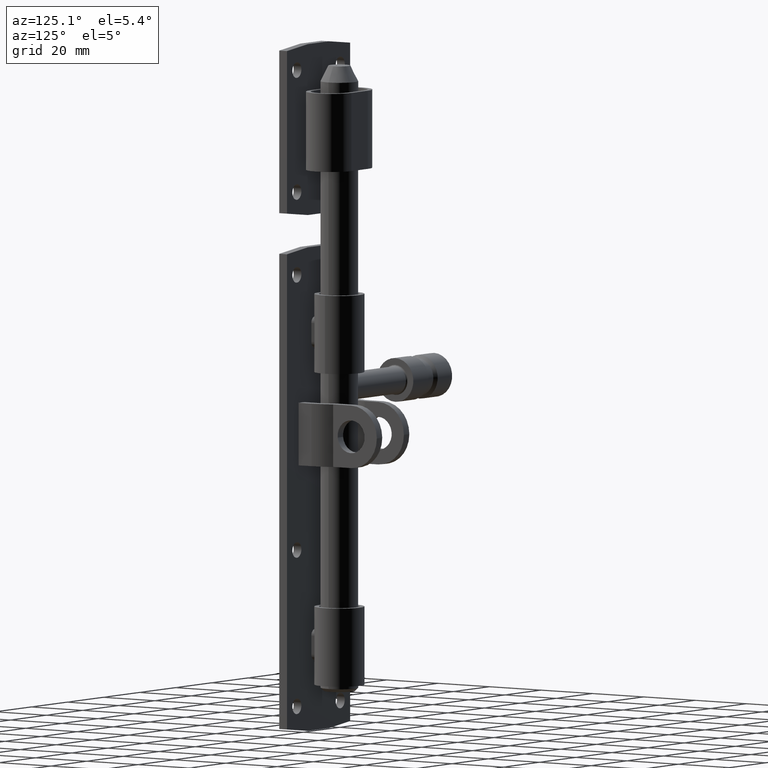
[diagram: clean part render]
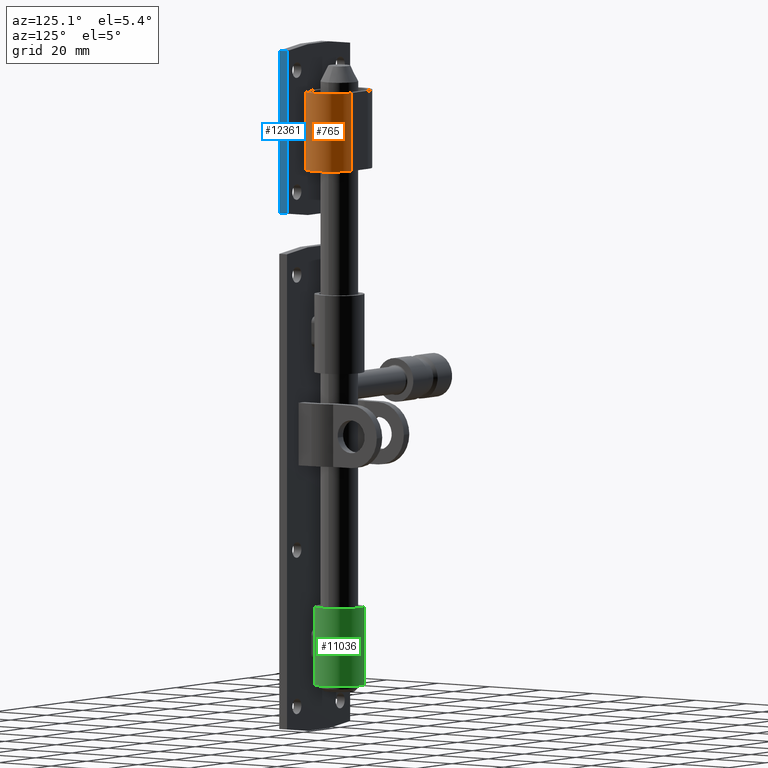
[diagram: same view with three faces highlighted in distinct colors, each labeled with its STEP entity id]
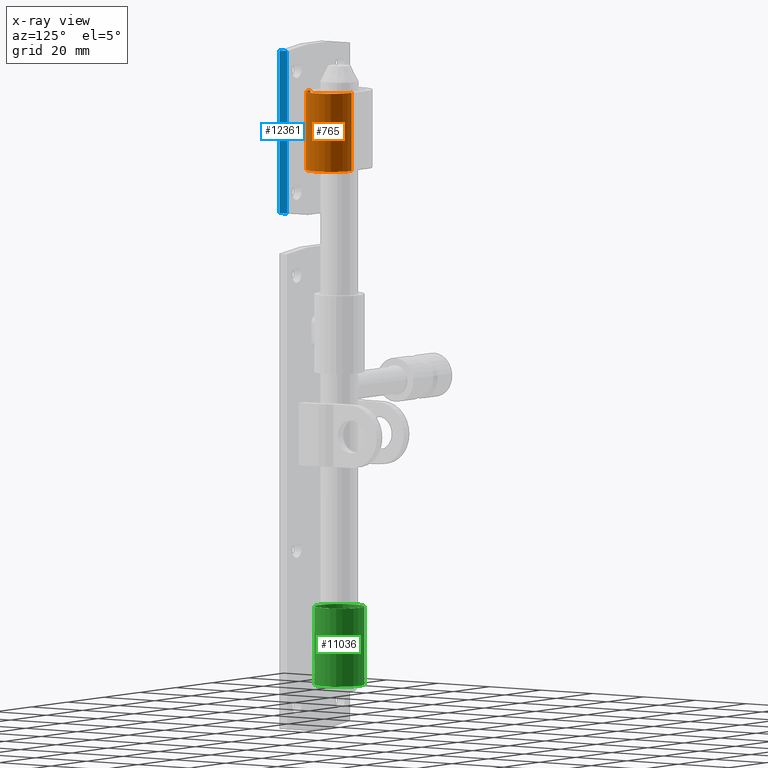
[diagram: x-ray of the same camera — body ghosted, the three highlighted faces saturated]
A machine part, auxiliary view with three faces highlighted in distinct colors.
The next image is the same camera in x-ray (body ghosted, the three faces saturated) — at least one of them is partly hidden behind the body in this view.
Their STEP definitions:

[orange] entity #765 — the highlighted cylindrical surface (edge-blend (fillet) strip) has radius 8 mm, axis along (0, -0, 1).
#541 = VECTOR ( 'NONE', #7025, 1000.000000000000000 ) ;
#765 = ADVANCED_FACE ( 'NONE', ( #9969 ), #11627, .T. ) ;
#1566 = ORIENTED_EDGE ( 'NONE', *, *, #2670, .T. ) ;
#1837 = DIRECTION ( 'NONE',  ( 1.000000000000000000, 0.000000000000000000, 0.000000000000000000 ) ) ;
#2670 = EDGE_CURVE ( 'NONE', #7708, #11668, #6609, .T. ) ;
#3544 = CARTESIAN_POINT ( 'NONE',  ( -4.500000000000000888, 2.999999999999995559, 12.50000000000000000 ) ) ;
#3594 = CARTESIAN_POINT ( 'NONE',  ( -4.500000000000000888, 19.00000000000000355, 12.50000000000000000 ) ) ;
#3740 = DIRECTION ( 'NONE',  ( -0.000000000000000000, -0.000000000000000000, -1.000000000000000000 ) ) ;
#4181 = VERTEX_POINT ( 'NONE', #10425 ) ;
#4423 = VERTEX_POINT ( 'NONE', #13186 ) ;
#4794 = CARTESIAN_POINT ( 'NONE',  ( -4.500000000000000888, 11.00000000000000000, 12.50000000000000000 ) ) ;
#6025 = EDGE_CURVE ( 'NONE', #4181, #7708, #14286, .T. ) ;
#6270 = ORIENTED_EDGE ( 'NONE', *, *, #7101, .F. ) ;
#6609 = CIRCLE ( 'NONE', #10058, 8.000000000000003553 ) ;
#7025 = DIRECTION ( 'NONE',  ( -0.000000000000000000, -0.000000000000000000, -1.000000000000000000 ) ) ;
#7082 = CARTESIAN_POINT ( 'NONE',  ( -4.500000000000000888, 2.999999999999995559, -12.50000000000000000 ) ) ;
#7101 = EDGE_CURVE ( 'NONE', #4423, #11668, #8235, .T. ) ;
#7708 = VERTEX_POINT ( 'NONE', #14105 ) ;
#7727 = EDGE_CURVE ( 'NONE', #4181, #4423, #13191, .T. ) ;
#8235 = LINE ( 'NONE', #3544, #541 ) ;
#9142 = CARTESIAN_POINT ( 'NONE',  ( -4.500000000000000888, 11.00000000000000000, -12.50000000000000000 ) ) ;
#9885 = EDGE_LOOP ( 'NONE', ( #1566, #6270, #12530, #13422 ) ) ;
#9969 = FACE_OUTER_BOUND ( 'NONE', #9885, .T. ) ;
#10058 = AXIS2_PLACEMENT_3D ( 'NONE', #9142, #10211, #1837 ) ;
#10211 = DIRECTION ( 'NONE',  ( 0.000000000000000000, 0.000000000000000000, 1.000000000000000000 ) ) ;
#10425 = CARTESIAN_POINT ( 'NONE',  ( -4.500000000000000888, 19.00000000000000355, 12.50000000000000000 ) ) ;
#10567 = DIRECTION ( 'NONE',  ( 0.000000000000000000, 0.000000000000000000, 1.000000000000000000 ) ) ;
#10617 = DIRECTION ( 'NONE',  ( 1.000000000000000000, 0.000000000000000000, 0.000000000000000000 ) ) ;
#11627 = CYLINDRICAL_SURFACE ( 'NONE', #13214, 8.000000000000003553 ) ;
#11668 = VERTEX_POINT ( 'NONE', #7082 ) ;
#12530 = ORIENTED_EDGE ( 'NONE', *, *, #7727, .F. ) ;
#12870 = CARTESIAN_POINT ( 'NONE',  ( -4.500000000000000888, 11.00000000000000000, 12.50000000000000000 ) ) ;
#13031 = VECTOR ( 'NONE', #3740, 1000.000000000000000 ) ;
#13186 = CARTESIAN_POINT ( 'NONE',  ( -4.500000000000000888, 2.999999999999995559, 12.50000000000000000 ) ) ;
#13191 = CIRCLE ( 'NONE', #15265, 8.000000000000003553 ) ;
#13214 = AXIS2_PLACEMENT_3D ( 'NONE', #4794, #15308, #15355 ) ;
#13422 = ORIENTED_EDGE ( 'NONE', *, *, #6025, .T. ) ;
#14105 = CARTESIAN_POINT ( 'NONE',  ( -4.500000000000000888, 19.00000000000000355, -12.50000000000000000 ) ) ;
#14286 = LINE ( 'NONE', #3594, #13031 ) ;
#15265 = AXIS2_PLACEMENT_3D ( 'NONE', #12870, #10567, #10617 ) ;
#15308 = DIRECTION ( 'NONE',  ( -0.000000000000000000, -0.000000000000000000, -1.000000000000000000 ) ) ;
#15355 = DIRECTION ( 'NONE',  ( -1.000000000000000000, 0.000000000000000000, 0.000000000000000000 ) ) ;

[blue] entity #12361 — the highlighted planar face has unit normal (-1, 0, 0).
#363 = DIRECTION ( 'NONE',  ( -0.000000000000000000, -1.000000000000000000, -0.000000000000000000 ) ) ;
#620 = DIRECTION ( 'NONE',  ( -0.000000000000000000, -0.000000000000000000, 1.000000000000000000 ) ) ;
#734 = VERTEX_POINT ( 'NONE', #4685 ) ;
#1163 = FACE_OUTER_BOUND ( 'NONE', #13402, .T. ) ;
#1706 = VECTOR ( 'NONE', #620, 1000.000000000000000 ) ;
#2510 = VERTEX_POINT ( 'NONE', #4077 ) ;
#2561 = EDGE_CURVE ( 'NONE', #2510, #10785, #11394, .T. ) ;
#2740 = CARTESIAN_POINT ( 'NONE',  ( -17.50000000000000711, 3.000000000000000000, 25.99999999999999289 ) ) ;
#2804 = ORIENTED_EDGE ( 'NONE', *, *, #6152, .T. ) ;
#4077 = CARTESIAN_POINT ( 'NONE',  ( -17.50000000000000711, 3.000000000000000000, 25.99999999999999289 ) ) ;
#4576 = AXIS2_PLACEMENT_3D ( 'NONE', #11607, #9136, #9194 ) ;
#4685 = CARTESIAN_POINT ( 'NONE',  ( -17.50000000000000711, 3.000000000000000000, -25.99999999999999289 ) ) ;
#5090 = VECTOR ( 'NONE', #6712, 1000.000000000000000 ) ;
#5640 = ORIENTED_EDGE ( 'NONE', *, *, #6721, .T. ) ;
#6152 = EDGE_CURVE ( 'NONE', #15012, #10785, #11521, .T. ) ;
#6537 = CARTESIAN_POINT ( 'NONE',  ( -17.50000000000000711, 0.000000000000000000, -25.99999999999999289 ) ) ;
#6712 = DIRECTION ( 'NONE',  ( -0.000000000000000000, -1.000000000000000000, -0.000000000000000000 ) ) ;
#6721 = EDGE_CURVE ( 'NONE', #734, #15012, #10419, .T. ) ;
#7477 = CARTESIAN_POINT ( 'NONE',  ( -17.50000000000000711, 0.000000000000000000, 25.99999999999999289 ) ) ;
#8455 = LINE ( 'NONE', #2740, #1706 ) ;
#8552 = DIRECTION ( 'NONE',  ( -0.000000000000000000, -0.000000000000000000, 1.000000000000000000 ) ) ;
#9073 = ORIENTED_EDGE ( 'NONE', *, *, #2561, .F. ) ;
#9136 = DIRECTION ( 'NONE',  ( 1.000000000000000000, -0.000000000000000000, 0.000000000000000000 ) ) ;
#9194 = DIRECTION ( 'NONE',  ( 0.000000000000000000, 0.000000000000000000, -1.000000000000000000 ) ) ;
#9702 = VECTOR ( 'NONE', #363, 1000.000000000000000 ) ;
#9812 = CARTESIAN_POINT ( 'NONE',  ( -17.50000000000000711, 3.000000000000000000, -25.99999999999999289 ) ) ;
#10404 = VECTOR ( 'NONE', #8552, 1000.000000000000000 ) ;
#10419 = LINE ( 'NONE', #9812, #9702 ) ;
#10785 = VERTEX_POINT ( 'NONE', #7477 ) ;
#11394 = LINE ( 'NONE', #12647, #5090 ) ;
#11521 = LINE ( 'NONE', #12237, #10404 ) ;
#11607 = CARTESIAN_POINT ( 'NONE',  ( -17.50000000000000711, 3.000000000000000000, 25.99999999999999289 ) ) ;
#12237 = CARTESIAN_POINT ( 'NONE',  ( -17.50000000000000711, 0.000000000000000000, 25.99999999999999289 ) ) ;
#12361 = ADVANCED_FACE ( 'NONE', ( #1163 ), #12644, .F. ) ;
#12644 = PLANE ( 'NONE',  #4576 ) ;
#12646 = EDGE_CURVE ( 'NONE', #734, #2510, #8455, .T. ) ;
#12647 = CARTESIAN_POINT ( 'NONE',  ( -17.50000000000000711, 3.000000000000000000, 25.99999999999999289 ) ) ;
#13402 = EDGE_LOOP ( 'NONE', ( #2804, #9073, #14582, #5640 ) ) ;
#14582 = ORIENTED_EDGE ( 'NONE', *, *, #12646, .F. ) ;
#15012 = VERTEX_POINT ( 'NONE', #6537 ) ;

[green] entity #11036 — the highlighted cylindrical surface (bore or boss wall) has radius 8 mm, axis along (-0, -0, -1).
#150 = CARTESIAN_POINT ( 'NONE',  ( 4.000000000000001776, 1.171796769724490206, -53.13721544361901294 ) ) ;
#358 = DIRECTION ( 'NONE',  ( -0.000000000000000000, -0.000000000000000000, -1.000000000000000000 ) ) ;
#391 = EDGE_LOOP ( 'NONE', ( #1995 ) ) ;
#489 = VERTEX_POINT ( 'NONE', #2945 ) ;
#776 = B_SPLINE_CURVE_WITH_KNOTS ( 'NONE', 3,
 ( #8720, #14792, #2706, #5165, #11033, #5121, #2750, #12212, #9909, #3968, #12256, #13464, #6390, #14633, #13666, #3166, #6599, #7934 ),
 .UNSPECIFIED., .F., .F.,
 ( 4, 2, 2, 2, 2, 2, 2, 2, 4 ),
 ( 1.341084023004561850E-18, 0.0004053024212613541588, 0.0008106048425227069081, 0.001215907263784059712, 0.001621209685045412515, 0.002026512106306765319, 0.002431814527568118122, 0.002837116948829470492, 0.003242419370090822862 ),
 .UNSPECIFIED. ) ;
#872 = DIRECTION ( 'NONE',  ( 0.000000000000000000, 0.000000000000000000, -1.000000000000000000 ) ) ;
#945 = CARTESIAN_POINT ( 'NONE',  ( -3.734440012357256755, 1.024119369373791777, -45.96947199844134957 ) ) ;
#1089 = CARTESIAN_POINT ( 'NONE',  ( 3.491063849130732422, 0.9011966928350726436, -45.66087570012603436 ) ) ;
#1196 = AXIS2_PLACEMENT_3D ( 'NONE', #13965, #872, #7925 ) ;
#1230 = CARTESIAN_POINT ( 'NONE',  ( 0.000000000000000000, 8.099999999999999645, -45.00000000000001421 ) ) ;
#1301 = CARTESIAN_POINT ( 'NONE',  ( 2.879476943906894348, 0.6351088891971973238, -54.80082919717088430 ) ) ;
#1375 = CARTESIAN_POINT ( 'NONE',  ( -3.999999999999999112, 1.171796769724489984, -47.00000000000001421 ) ) ;
#1448 = CARTESIAN_POINT ( 'NONE',  ( 2.262433013322839859, 0.4254224623635851077, -54.98693901985913612 ) ) ;
#1835 = VERTEX_POINT ( 'NONE', #12165 ) ;
#1995 = ORIENTED_EDGE ( 'NONE', *, *, #4463, .T. ) ;
#2133 = CARTESIAN_POINT ( 'NONE',  ( 2.640705588109908408, 0.5473288363636569231, -45.10101504854397803 ) ) ;
#2152 = CARTESIAN_POINT ( 'NONE',  ( -3.582720688234869666, 0.9442184203694494737, -45.75061688542967886 ) ) ;
#2416 = CIRCLE ( 'NONE', #12544, 8.000000000000000000 ) ;
#2457 = CARTESIAN_POINT ( 'NONE',  ( -3.206192544386316179, 0.7696657760983882657, -45.39953031026224295 ) ) ;
#2508 = CARTESIAN_POINT ( 'NONE',  ( 3.582720688234870554, 0.9442184203694502509, -54.24938311457033535 ) ) ;
#2549 = AXIS2_PLACEMENT_3D ( 'NONE', #6621, #15021, #10366 ) ;
#2692 = B_SPLINE_CURVE_WITH_KNOTS ( 'NONE', 3,
 ( #8213, #15219, #9245, #9404, #5718, #945, #2152, #10456, #2457, #11370, #10500, #15260, #11205, #13729, #6881, #7288 ),
 .UNSPECIFIED., .F., .F.,
 ( 4, 2, 2, 2, 2, 2, 2, 4 ),
 ( 7.023086426956682172E-18, 0.0004052552676201020047, 0.0008105105352401969620, 0.001621021070480368770, 0.002026276338100454349, 0.002431531605720539928, 0.002836786873340625507, 0.003242042140960711086 ),
 .UNSPECIFIED. ) ;
#2706 = CARTESIAN_POINT ( 'NONE',  ( -2.262405595254725288, 0.4254218699077957910, -54.98691503065616359 ) ) ;
#2741 = AXIS2_PLACEMENT_3D ( 'NONE', #10202, #12590, #15003 ) ;
#2750 = CARTESIAN_POINT ( 'NONE',  ( -2.992268978239930100, 0.6797747665175284393, -54.74118875394872674 ) ) ;
#2766 = CARTESIAN_POINT ( 'NONE',  ( -1.999999999999999112, 0.3540333075851658240, -45.00000000000001421 ) ) ;
#2945 = CARTESIAN_POINT ( 'NONE',  ( -3.999999999999999112, 1.171796769724489984, -52.99999999999999289 ) ) ;
#3094 = CARTESIAN_POINT ( 'NONE',  ( 8.000000000000000000, 8.099999999999999645, -62.50000000000000000 ) ) ;
#3166 = CARTESIAN_POINT ( 'NONE',  ( -3.985670443235195926, 1.163470887433002421, -53.27464148206102124 ) ) ;
#3197 = DIRECTION ( 'NONE',  ( 0.000000000000000000, 0.000000000000000000, 1.000000000000000000 ) ) ;
#3266 = CARTESIAN_POINT ( 'NONE',  ( 2.000000000000000000, 0.3540333075851658240, -45.00000000000001421 ) ) ;
#3618 = LINE ( 'NONE', #12117, #5288 ) ;
#3845 = CARTESIAN_POINT ( 'NONE',  ( 3.206192544386312626, 0.7696657760983877106, -54.60046968973777837 ) ) ;
#3968 = CARTESIAN_POINT ( 'NONE',  ( -3.491063849130730201, 0.9011966928350723105, -54.33912429987396564 ) ) ;
#3982 = FACE_BOUND ( 'NONE', #10133, .T. ) ;
#4463 = EDGE_CURVE ( 'NONE', #8967, #8967, #13060, .T. ) ;
#4528 = VERTEX_POINT ( 'NONE', #5699 ) ;
#4529 = CARTESIAN_POINT ( 'NONE',  ( 3.985670443235197702, 1.163470887433003975, -46.72535851793900719 ) ) ;
#4588 = CARTESIAN_POINT ( 'NONE',  ( 2.992268978239930988, 0.6797747665175268850, -45.25881124605128036 ) ) ;
#4689 = CARTESIAN_POINT ( 'NONE',  ( 4.000000000000001776, 1.171796769724490428, -46.86257325789632944 ) ) ;
#4913 = CIRCLE ( 'NONE', #2741, 8.000000000000000000 ) ;
#4962 = CARTESIAN_POINT ( 'NONE',  ( 4.000000000000000000, 1.171796769724489984, -52.99999999999999289 ) ) ;
#5001 = CARTESIAN_POINT ( 'NONE',  ( 2.132649590216821878, 0.3882832845045647852, -54.99999999999999289 ) ) ;
#5093 = VECTOR ( 'NONE', #15152, 1000.000000000000000 ) ;
#5121 = CARTESIAN_POINT ( 'NONE',  ( -2.879395987587925809, 0.6350655424336506538, -54.80091926346131714 ) ) ;
#5165 = CARTESIAN_POINT ( 'NONE',  ( -2.515832791697636850, 0.5047242369649065363, -54.93664776520609649 ) ) ;
#5288 = VECTOR ( 'NONE', #358, 1000.000000000000000 ) ;
#5401 = EDGE_CURVE ( 'NONE', #12171, #10633, #2692, .T. ) ;
#5404 = CARTESIAN_POINT ( 'NONE',  ( -8.000000000000000000, 8.099999999999999645, -37.50000000000000711 ) ) ;
#5471 = CARTESIAN_POINT ( 'NONE',  ( -3.999999999999999112, 1.171796769724489984, 62.50000000000000000 ) ) ;
#5581 = CARTESIAN_POINT ( 'NONE',  ( 2.132787571037483954, 0.3883189109992664090, -45.00000000000000711 ) ) ;
#5699 = CARTESIAN_POINT ( 'NONE',  ( -1.999999999999999112, 0.3540333075851658240, -54.99999999999999289 ) ) ;
#5718 = CARTESIAN_POINT ( 'NONE',  ( -3.890870403152122847, 1.109673846517148954, -46.33503635580667179 ) ) ;
#6062 = DIRECTION ( 'NONE',  ( -1.000000000000000000, 0.000000000000000000, 0.000000000000000000 ) ) ;
#6071 = CIRCLE ( 'NONE', #13218, 8.000000000000000000 ) ;
#6172 = CARTESIAN_POINT ( 'NONE',  ( 2.000000000000000000, 0.3540333075851658240, -54.99999999999999289 ) ) ;
#6273 = CARTESIAN_POINT ( 'NONE',  ( 3.986033116961417821, 1.163681633895160106, -53.27155093990069190 ) ) ;
#6305 = ORIENTED_EDGE ( 'NONE', *, *, #10730, .T. ) ;
#6390 = CARTESIAN_POINT ( 'NONE',  ( -3.786355380819492744, 1.052516321013093670, -53.90904936915845269 ) ) ;
#6407 = EDGE_LOOP ( 'NONE', ( #6305 ) ) ;
#6435 = B_SPLINE_CURVE_WITH_KNOTS ( 'NONE', 3,
 ( #3266, #5581, #11427, #9385, #2133, #15202, #4588, #9275, #12948, #1089, #10496, #9442, #10587, #11638, #7109, #4529, #4689, #8258 ),
 .UNSPECIFIED., .F., .F.,
 ( 4, 2, 2, 2, 2, 2, 2, 2, 4 ),
 ( 1.341084023004561850E-18, 0.0004053024212613543214, 0.0008106048425227072333, 0.001215907263784060145, 0.001621209685045413166, 0.002026512106306766186, 0.002431814527568118989, 0.002837116948829471359, 0.003242419370090823729 ),
 .UNSPECIFIED. ) ;
#6451 = EDGE_CURVE ( 'NONE', #10633, #1835, #2416, .T. ) ;
#6599 = CARTESIAN_POINT ( 'NONE',  ( -4.000000000000000888, 1.171796769724490428, -53.13742674210367767 ) ) ;
#6621 = CARTESIAN_POINT ( 'NONE',  ( 0.000000000000000000, 8.099999999999999645, 62.50000000000000000 ) ) ;
#6881 = CARTESIAN_POINT ( 'NONE',  ( -2.132649590216820101, 0.3882832845045648407, -45.00000000000002132 ) ) ;
#7109 = CARTESIAN_POINT ( 'NONE',  ( 3.930570813800700058, 1.132100884106729932, -46.46035994801403746 ) ) ;
#7187 = FACE_OUTER_BOUND ( 'NONE', #6407, .T. ) ;
#7211 = EDGE_CURVE ( 'NONE', #14315, #14791, #8973, .T. ) ;
#7261 = CARTESIAN_POINT ( 'NONE',  ( 3.890870403152122847, 1.109673846517148732, -53.66496364419334242 ) ) ;
#7288 = CARTESIAN_POINT ( 'NONE',  ( -1.999999999999999112, 0.3540333075851658240, -45.00000000000001421 ) ) ;
#7418 = CARTESIAN_POINT ( 'NONE',  ( 2.992194004628225379, 0.6797408734971706057, -54.74125091215548622 ) ) ;
#7461 = CARTESIAN_POINT ( 'NONE',  ( 2.642134740065424037, 0.5478406543576221921, -54.89845423117019152 ) ) ;
#7469 = VERTEX_POINT ( 'NONE', #3094 ) ;
#7601 = ORIENTED_EDGE ( 'NONE', *, *, #5401, .T. ) ;
#7925 = DIRECTION ( 'NONE',  ( -1.000000000000000000, 0.000000000000000000, 0.000000000000000000 ) ) ;
#7934 = CARTESIAN_POINT ( 'NONE',  ( -3.999999999999999112, 1.171796769724489984, -52.99999999999999289 ) ) ;
#8127 = ORIENTED_EDGE ( 'NONE', *, *, #9982, .T. ) ;
#8213 = CARTESIAN_POINT ( 'NONE',  ( -3.999999999999999112, 1.171796769724489984, -47.00000000000001421 ) ) ;
#8258 = CARTESIAN_POINT ( 'NONE',  ( 4.000000000000000000, 1.171796769724489984, -47.00000000000001421 ) ) ;
#8416 = CARTESIAN_POINT ( 'NONE',  ( 3.307448130364824213, 0.8150112387686041515, -54.51890425056702583 ) ) ;
#8473 = CARTESIAN_POINT ( 'NONE',  ( 3.734440012357259420, 1.024119369373792665, -54.03052800155864333 ) ) ;
#8612 = CARTESIAN_POINT ( 'NONE',  ( 3.931836053470450398, 1.132817087652544297, -53.53486158689903363 ) ) ;
#8685 = ORIENTED_EDGE ( 'NONE', *, *, #10832, .T. ) ;
#8705 = ORIENTED_EDGE ( 'NONE', *, *, #6451, .T. ) ;
#8720 = CARTESIAN_POINT ( 'NONE',  ( -1.999999999999999112, 0.3540333075851658240, -54.99999999999999289 ) ) ;
#8967 = VERTEX_POINT ( 'NONE', #5404 ) ;
#8973 = B_SPLINE_CURVE_WITH_KNOTS ( 'NONE', 3,
 ( #4962, #150, #6273, #8612, #7261, #8473, #2508, #8416, #3845, #7418, #1301, #7461, #10812, #1448, #5001, #6172 ),
 .UNSPECIFIED., .F., .F.,
 ( 4, 2, 2, 2, 2, 2, 2, 4 ),
 ( 7.023086426956682172E-18, 0.0004052552676201016794, 0.0008105105352401963115, 0.001621021070480367469, 0.002026276338100453482, 0.002431531605720539495, 0.002836786873340625507, 0.003242042140960711520 ),
 .UNSPECIFIED. ) ;
#9009 = VERTEX_POINT ( 'NONE', #13780 ) ;
#9209 = DIRECTION ( 'NONE',  ( 1.000000000000000000, 0.000000000000000000, 0.000000000000000000 ) ) ;
#9245 = CARTESIAN_POINT ( 'NONE',  ( -3.986033116961415157, 1.163681633895160106, -46.72844906009930810 ) ) ;
#9275 = CARTESIAN_POINT ( 'NONE',  ( 3.205837372916344297, 0.7695141435127303975, -45.39928383773606413 ) ) ;
#9368 = ORIENTED_EDGE ( 'NONE', *, *, #11789, .T. ) ;
#9385 = CARTESIAN_POINT ( 'NONE',  ( 2.515832791697637294, 0.5047242369649065363, -45.06335223479391061 ) ) ;
#9404 = CARTESIAN_POINT ( 'NONE',  ( -3.931836053470449510, 1.132817087652543853, -46.46513841310097348 ) ) ;
#9442 = CARTESIAN_POINT ( 'NONE',  ( 3.721539310241696707, 1.017837916752532212, -45.97371847613445794 ) ) ;
#9894 = ORIENTED_EDGE ( 'NONE', *, *, #11356, .T. ) ;
#9909 = CARTESIAN_POINT ( 'NONE',  ( -3.307357247797833466, 0.8149685045708062736, -54.51899385098424489 ) ) ;
#9982 = EDGE_CURVE ( 'NONE', #4528, #489, #776, .T. ) ;
#10133 = EDGE_LOOP ( 'NONE', ( #9894, #7601, #8705, #14458, #8685, #12512, #9368, #8127 ) ) ;
#10202 = CARTESIAN_POINT ( 'NONE',  ( 0.000000000000000000, 8.099999999999999645, -54.99999999999999289 ) ) ;
#10366 = DIRECTION ( 'NONE',  ( -1.000000000000000000, 0.000000000000000000, 0.000000000000000000 ) ) ;
#10412 = CARTESIAN_POINT ( 'NONE',  ( 2.000000000000000000, 0.3540333075851658240, -54.99999999999999289 ) ) ;
#10456 = CARTESIAN_POINT ( 'NONE',  ( -3.307448130364824213, 0.8150112387686039295, -45.48109574943300970 ) ) ;
#10496 = CARTESIAN_POINT ( 'NONE',  ( 3.573954347031696788, 0.9422262583680666159, -45.75918612338704605 ) ) ;
#10500 = CARTESIAN_POINT ( 'NONE',  ( -2.879476943906895237, 0.6351088891971979900, -45.19917080282912991 ) ) ;
#10587 = CARTESIAN_POINT ( 'NONE',  ( 3.786355380819494965, 1.052516321013095668, -46.09095063084156152 ) ) ;
#10633 = VERTEX_POINT ( 'NONE', #2766 ) ;
#10730 = EDGE_CURVE ( 'NONE', #7469, #7469, #6071, .T. ) ;
#10812 = CARTESIAN_POINT ( 'NONE',  ( 2.516680697326913130, 0.5049975780998859909, -54.93645005412747651 ) ) ;
#10832 = EDGE_CURVE ( 'NONE', #9009, #14315, #3618, .T. ) ;
#11033 = CARTESIAN_POINT ( 'NONE',  ( -2.640705588109908408, 0.5473288363636569231, -54.89898495145603619 ) ) ;
#11036 = ADVANCED_FACE ( 'NONE', ( #13455, #7187, #3982 ), #13092, .T. ) ;
#11117 = CARTESIAN_POINT ( 'NONE',  ( 4.000000000000000000, 1.171796769724489984, -52.99999999999999289 ) ) ;
#11205 = CARTESIAN_POINT ( 'NONE',  ( -2.516680697326912686, 0.5049975780998858799, -45.06354994587252349 ) ) ;
#11356 = EDGE_CURVE ( 'NONE', #489, #12171, #13806, .T. ) ;
#11370 = CARTESIAN_POINT ( 'NONE',  ( -2.992194004628229376, 0.6797408734971708277, -45.25874908784453510 ) ) ;
#11427 = CARTESIAN_POINT ( 'NONE',  ( 2.262405595254726620, 0.4254218699077957355, -45.01308496934384351 ) ) ;
#11638 = CARTESIAN_POINT ( 'NONE',  ( 3.890365148396876194, 1.109393997113949704, -46.33369983650263890 ) ) ;
#11789 = EDGE_CURVE ( 'NONE', #14791, #4528, #4913, .T. ) ;
#12117 = CARTESIAN_POINT ( 'NONE',  ( 4.000000000000000000, 1.171796769724489984, 62.50000000000000000 ) ) ;
#12165 = CARTESIAN_POINT ( 'NONE',  ( 2.000000000000000000, 0.3540333075851658240, -45.00000000000001421 ) ) ;
#12171 = VERTEX_POINT ( 'NONE', #1375 ) ;
#12212 = CARTESIAN_POINT ( 'NONE',  ( -3.205837372916342076, 0.7695141435127315077, -54.60071616226395008 ) ) ;
#12256 = CARTESIAN_POINT ( 'NONE',  ( -3.573954347031695455, 0.9422262583680667269, -54.24081387661296105 ) ) ;
#12512 = ORIENTED_EDGE ( 'NONE', *, *, #7211, .T. ) ;
#12544 = AXIS2_PLACEMENT_3D ( 'NONE', #1230, #13143, #6062 ) ;
#12590 = DIRECTION ( 'NONE',  ( -0.000000000000000000, -0.000000000000000000, -1.000000000000000000 ) ) ;
#12948 = CARTESIAN_POINT ( 'NONE',  ( 3.307357247797833910, 0.8149685045708062736, -45.48100614901576222 ) ) ;
#13060 = CIRCLE ( 'NONE', #1196, 8.000000000000000000 ) ;
#13092 = CYLINDRICAL_SURFACE ( 'NONE', #2549, 8.000000000000000000 ) ;
#13143 = DIRECTION ( 'NONE',  ( -0.000000000000000000, -0.000000000000000000, 1.000000000000000000 ) ) ;
#13218 = AXIS2_PLACEMENT_3D ( 'NONE', #14804, #3197, #9209 ) ;
#13455 = FACE_OUTER_BOUND ( 'NONE', #391, .T. ) ;
#13464 = CARTESIAN_POINT ( 'NONE',  ( -3.721539310241695375, 1.017837916752531990, -54.02628152386556337 ) ) ;
#13666 = CARTESIAN_POINT ( 'NONE',  ( -3.930570813800701835, 1.132100884106728600, -53.53964005198599097 ) ) ;
#13729 = CARTESIAN_POINT ( 'NONE',  ( -2.262433013322837194, 0.4254224623635849967, -45.01306098014084256 ) ) ;
#13780 = CARTESIAN_POINT ( 'NONE',  ( 4.000000000000000000, 1.171796769724489984, -47.00000000000001421 ) ) ;
#13806 = LINE ( 'NONE', #5471, #5093 ) ;
#13965 = CARTESIAN_POINT ( 'NONE',  ( 0.000000000000000000, 8.099999999999999645, -37.50000000000000711 ) ) ;
#14315 = VERTEX_POINT ( 'NONE', #11117 ) ;
#14458 = ORIENTED_EDGE ( 'NONE', *, *, #14522, .T. ) ;
#14522 = EDGE_CURVE ( 'NONE', #1835, #9009, #6435, .T. ) ;
#14633 = CARTESIAN_POINT ( 'NONE',  ( -3.890365148396876638, 1.109393997113947927, -53.66630016349734689 ) ) ;
#14791 = VERTEX_POINT ( 'NONE', #10412 ) ;
#14792 = CARTESIAN_POINT ( 'NONE',  ( -2.132787571037483065, 0.3883189109992664645, -55.00000000000000711 ) ) ;
#14804 = CARTESIAN_POINT ( 'NONE',  ( 0.000000000000000000, 8.099999999999999645, -62.50000000000000000 ) ) ;
#15003 = DIRECTION ( 'NONE',  ( 1.000000000000000000, 0.000000000000000000, 0.000000000000000000 ) ) ;
#15021 = DIRECTION ( 'NONE',  ( -0.000000000000000000, -0.000000000000000000, -1.000000000000000000 ) ) ;
#15152 = DIRECTION ( 'NONE',  ( 0.000000000000000000, 0.000000000000000000, 1.000000000000000000 ) ) ;
#15202 = CARTESIAN_POINT ( 'NONE',  ( 2.879395987587926253, 0.6350655424336505428, -45.19908073653870417 ) ) ;
#15219 = CARTESIAN_POINT ( 'NONE',  ( -4.000000000000000000, 1.171796769724489984, -46.86278455638100127 ) ) ;
#15260 = CARTESIAN_POINT ( 'NONE',  ( -2.642134740065424037, 0.5478406543576229693, -45.10154576882980848 ) ) ;